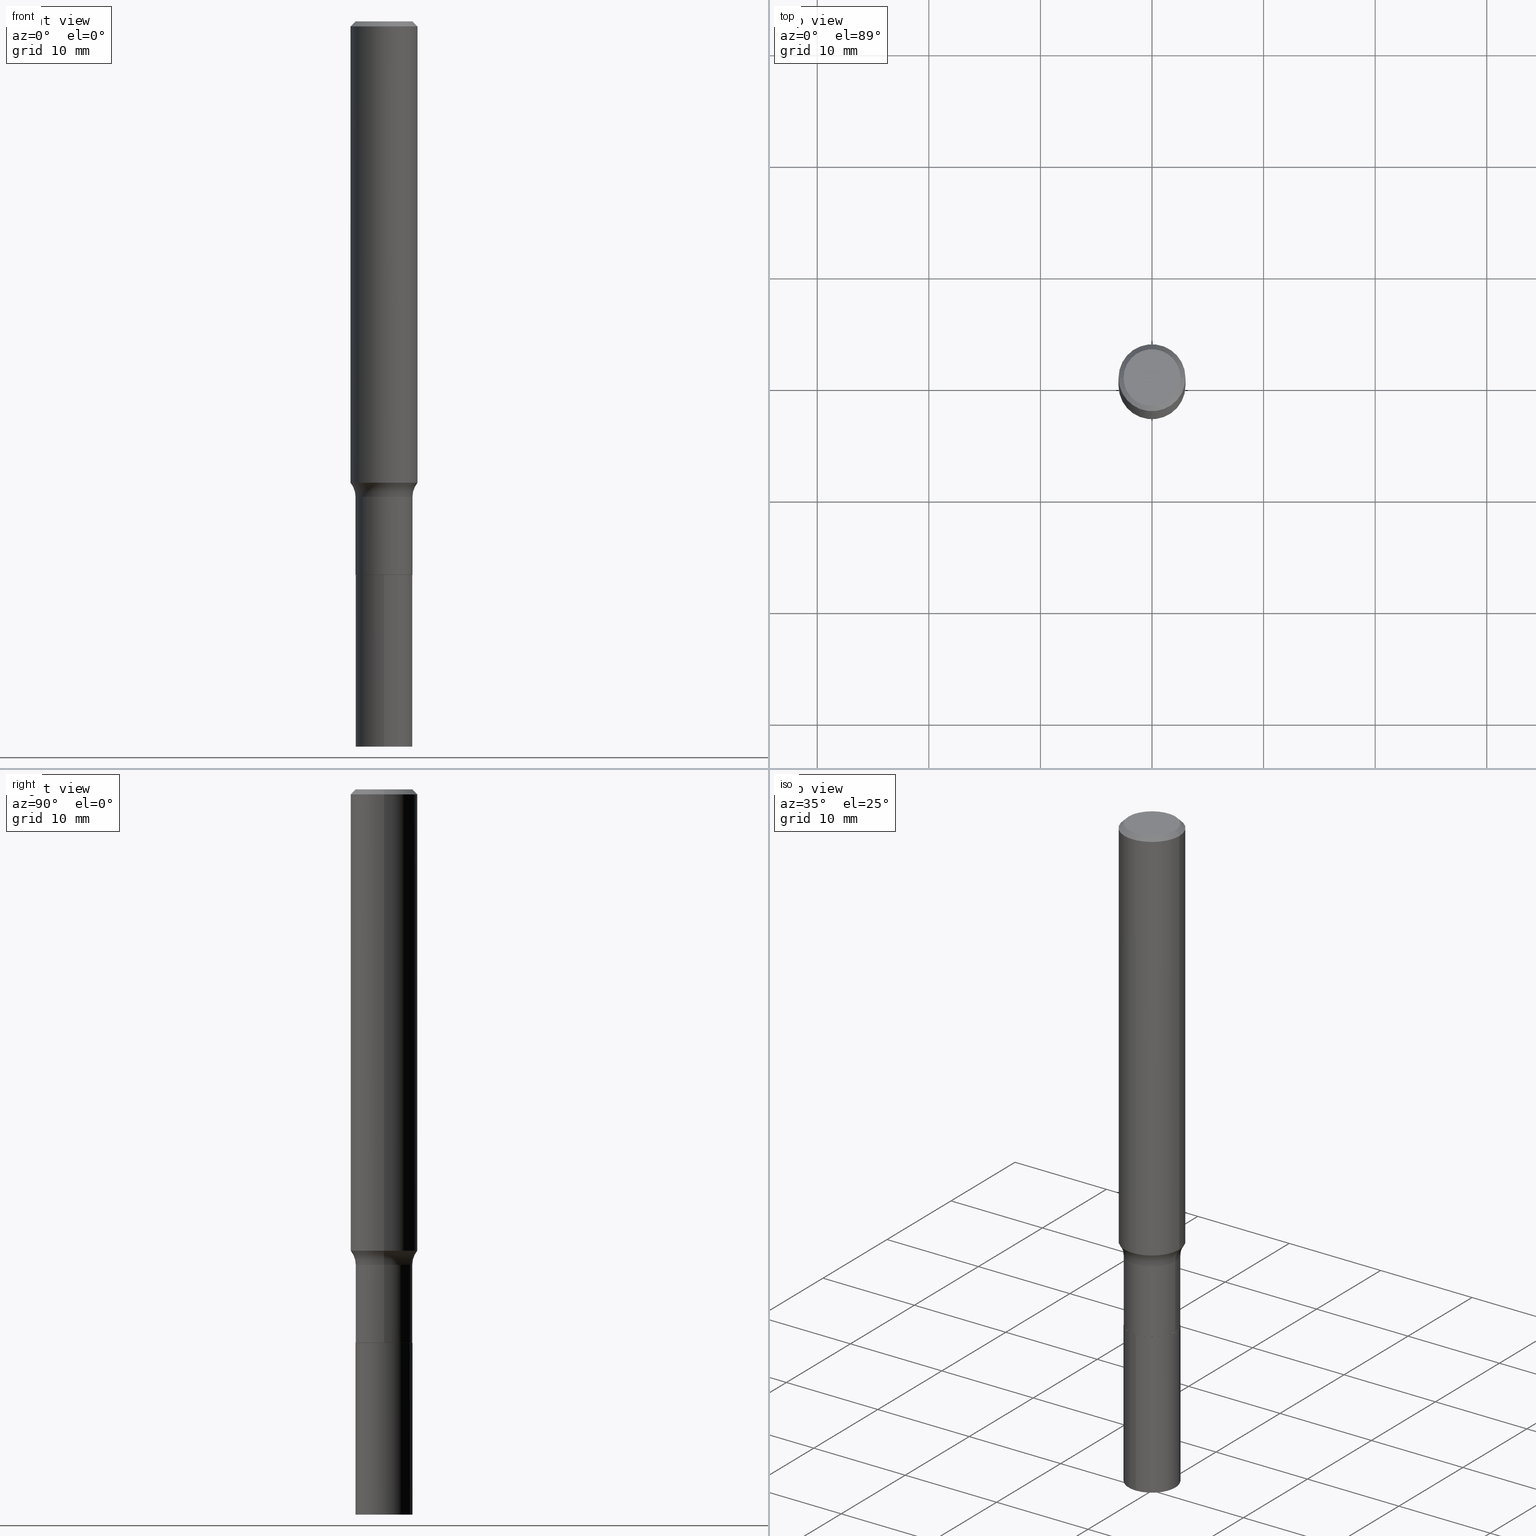
[diagram: canonical four-view strip — front | top / right | iso, engineering-drawing reading convention]
A machine part, canonical four-view strip (front | top / right | iso — engineering-drawing reading convention). The complete STEP part file that produces these views, byte-faithful:
ISO-10303-21;
HEADER;
FILE_DESCRIPTION (( 'STEP AP203' ),
    '1' );
FILE_NAME ('67726.STEP',
    '2024-04-19T16:12:01',
    ( '' ),
    ( '' ),
    'SwSTEP 2.0',
    'SolidWorks 2023',
    '' );
FILE_SCHEMA (( 'CONFIG_CONTROL_DESIGN' ));
ENDSEC;

DATA;
#1 = DIRECTION ( 'NONE',  ( -0.7071067811865454633, 2.468850131082235761E-15, -0.7071067811865493491 ) ) ;
#2 = AXIS2_PLACEMENT_3D ( 'NONE', #388, #211, #313 ) ;
#3 = AXIS2_PLACEMENT_3D ( 'NONE', #16, #63, #162 ) ;
#4 = DIRECTION ( 'NONE',  ( -2.445468806185136597E-29, 3.491481338843145583E-15, 1.000000000000000000 ) ) ;
#5 = PRODUCT_DEFINITION_SHAPE ( 'NONE', 'NONE',  #344 ) ;
#6 = EDGE_LOOP ( 'NONE', ( #37, #410, #8, #219 ) ) ;
#7 = EDGE_CURVE ( 'NONE', #361, #291, #416, .T. ) ;
#8 = ORIENTED_EDGE ( 'NONE', *, *, #430, .F. ) ;
#9 = AXIS2_PLACEMENT_3D ( 'NONE', #386, #106, #465 ) ;
#10 = SECURITY_CLASSIFICATION ( '', '', #108 ) ;
#11 = DIRECTION ( 'NONE',  ( 0.7071067811865454633, -7.319954787623246579E-15, -0.7071067811865493491 ) ) ;
#12 = ORIENTED_EDGE ( 'NONE', *, *, #380, .T. ) ;
#13 = DIRECTION ( 'NONE',  ( -2.445468806185136877E-29, 3.491481338843145188E-15, 1.000000000000000000 ) ) ;
#14 = APPROVAL ( #302, 'UNSPECIFIED' ) ;
#15 = ORIENTED_EDGE ( 'NONE', *, *, #168, .T. ) ;
#16 = CARTESIAN_POINT ( 'NONE',  ( -0.1803999999999999770, -4.576886591267577921E-15, -1.677999999999999936 ) ) ;
#17 = CIRCLE ( 'NONE', #244, 0.1003850000000000159 ) ;
#18 = CARTESIAN_POINT ( 'NONE',  ( 6.258336242776719159E-29, -8.934853672551297411E-15, -2.559100000000000374 ) ) ;
#19 = CARTESIAN_POINT ( 'NONE',  ( -7.010894528396533507E-16, -0.1004000000000068171, -1.953099999999999614 ) ) ;
#20 = ORIENTED_EDGE ( 'NONE', *, *, #121, .F. ) ;
#21 = DATE_TIME_ROLE ( 'creation_date' ) ;
#22 = CYLINDRICAL_SURFACE ( 'NONE', #275, 0.1004000000000000031 ) ;
#23 = DIRECTION ( 'NONE',  ( -6.982962677686266711E-15, -1.000000000000000000, 2.720964137115799877E-15 ) ) ;
#24 = CARTESIAN_POINT ( 'NONE',  ( -0.1003999999999999754, -5.624701167698822388E-15, -1.677999999999999936 ) ) ;
#25 = AXIS2_PLACEMENT_3D ( 'NONE', #458, #456, #209 ) ;
#26 = AXIS2_PLACEMENT_3D ( 'NONE', #238, #446, #448 ) ;
#27 = APPROVAL ( #346, 'UNSPECIFIED' ) ;
#28 = DIRECTION ( 'NONE',  ( 1.000000000000000000, -6.982962677686266711E-15, 4.876176775795935793E-29 ) ) ;
#29 = DIRECTION ( 'NONE',  ( 0.7071067811866078578, -2.468850131082888544E-15, 0.7071067811864871766 ) ) ;
#30 = CARTESIAN_POINT ( 'NONE',  ( 0.000000000000000000, 0.000000000000000000, 0.000000000000000000 ) ) ;
#31 = CALENDAR_DATE ( 2024, 19, 4 ) ;
#32 = EDGE_CURVE ( 'NONE', #79, #83, #374, .T. ) ;
#33 = CIRCLE ( 'NONE', #3, 0.07999999999999996003 ) ;
#34 = DIRECTION ( 'NONE',  ( -2.445468806185136597E-29, 3.491481338843145583E-15, 1.000000000000000000 ) ) ;
#35 = DIRECTION ( 'NONE',  ( 1.000000000000000000, -6.982962677686266711E-15, 4.876176775795935232E-29 ) ) ;
#36 = CARTESIAN_POINT ( 'NONE',  ( 4.776245125360189939E-29, -6.819212202894547031E-15, -1.953100000000000058 ) ) ;
#37 = ORIENTED_EDGE ( 'NONE', *, *, #337, .T. ) ;
#38 = EDGE_LOOP ( 'NONE', ( #133, #12, #271, #91 ) ) ;
#39 = CIRCLE ( 'NONE', #258, 0.1004000000000000031 ) ;
#40 = VERTEX_POINT ( 'NONE', #224 ) ;
#41 = DIRECTION ( 'NONE',  ( -2.445468806185136877E-29, 3.491481338843145188E-15, 1.000000000000000000 ) ) ;
#42 = EDGE_CURVE ( 'NONE', #216, #148, #342, .T. ) ;
#43 = ORIENTED_EDGE ( 'NONE', *, *, #396, .T. ) ;
#44 = EDGE_CURVE ( 'NONE', #445, #124, #39, .T. ) ;
#45 = CLOSED_SHELL ( 'NONE', ( #339, #467, #161, #285, #261, #127, #132, #324, #181, #54, #174, #248 ) ) ;
#46 = CIRCLE ( 'NONE', #177, 0.09990000000000000269 ) ;
#47 = DIRECTION ( 'NONE',  ( -2.445468806185136597E-29, 3.491481338843145583E-15, 1.000000000000000000 ) ) ;
#48 = DIRECTION ( 'NONE',  ( 6.982962677686265922E-15, 1.000000000000000000, -3.491157540687701094E-15 ) ) ;
#49 = COORDINATED_UNIVERSAL_TIME_OFFSET ( 5, 0, .BEHIND. ) ;
#50 = ADVANCED_FACE ( 'NONE', ( #326 ), #154, .F. ) ;
#51 = ORIENTED_EDGE ( 'NONE', *, *, #121, .T. ) ;
#52 = DIMENSIONAL_EXPONENTS ( 1.000000000000000000, 0.000000000000000000, 0.000000000000000000, 0.000000000000000000, 0.000000000000000000, 0.000000000000000000, 0.000000000000000000 ) ;
#53 = APPLICATION_PROTOCOL_DEFINITION ( 'international standard', 'config_control_design', 1994, #411 ) ;
#54 = ADVANCED_FACE ( 'NONE', ( #193 ), #157, .F. ) ;
#55 = ORIENTED_EDGE ( 'NONE', *, *, #396, .F. ) ;
#56 = PERSON_AND_ORGANIZATION ( #398, #101 ) ;
#57 = FACE_OUTER_BOUND ( 'NONE', #6, .T. ) ;
#58 = AXIS2_PLACEMENT_3D ( 'NONE', #66, #306, #102 ) ;
#59 = CC_DESIGN_PERSON_AND_ORGANIZATION_ASSIGNMENT ( #240, #207, ( #455 ) ) ;
#60 = AXIS2_PLACEMENT_3D ( 'NONE', #428, #34, #389 ) ;
#61 = DIRECTION ( 'NONE',  ( -2.445694913228593758E-29, 3.491157540687701094E-15, 1.000000000000000000 ) ) ;
#62 = ADVANCED_FACE ( 'NONE', ( #340 ), #210, .T. ) ;
#63 = DIRECTION ( 'NONE',  ( 7.105427357601001859E-15, 1.000000000000000000, -3.491481338843145583E-15 ) ) ;
#64 = DIRECTION ( 'NONE',  ( 2.438088387897960049E-29, -3.491481338843145188E-15, -1.000000000000000000 ) ) ;
#65 = COORDINATED_UNIVERSAL_TIME_OFFSET ( 5, 0, .BEHIND. ) ;
#66 = CARTESIAN_POINT ( 'NONE',  ( 6.258336242776719159E-29, -8.934853672551297411E-15, -2.559100000000000374 ) ) ;
#67 = COORDINATED_UNIVERSAL_TIME_OFFSET ( 5, 0, .BEHIND. ) ;
#68 = CC_DESIGN_PERSON_AND_ORGANIZATION_ASSIGNMENT ( #180, #145, ( #455 ) ) ;
#69 = DIRECTION ( 'NONE',  ( 1.000000000000000000, -6.982962677686266711E-15, 4.883557194083112901E-29 ) ) ;
#70 = CIRCLE ( 'NONE', #319, 0.1180999999999999966 ) ;
#71 = CARTESIAN_POINT ( 'NONE',  ( 0.1181000000000002048, -6.508167473402816070E-15, -1.627813248760255238 ) ) ;
#72 = PERSON_AND_ORGANIZATION_ROLE ( 'classification_officer' ) ;
#73 = DIRECTION ( 'NONE',  ( 1.000000000000000000, -6.982962677686268288E-15, 0.000000000000000000 ) ) ;
#74 = CARTESIAN_POINT ( 'NONE',  ( 4.776245125360189939E-29, -6.819212202894547031E-15, -1.953100000000000058 ) ) ;
#75 = LOCAL_TIME ( 12, 12, 1.000000000000000000, #49 ) ;
#76 = FACE_OUTER_BOUND ( 'NONE', #117, .T. ) ;
#77 = ORIENTED_EDGE ( 'NONE', *, *, #265, .T. ) ;
#78 = DIRECTION ( 'NONE',  ( -6.982962677686266711E-15, -1.000000000000000000, 2.720964137115799877E-15 ) ) ;
#79 = VERTEX_POINT ( 'NONE', #237 ) ;
#80 = PRODUCT ( '67726', '67726', '', ( #417 ) ) ;
#81 = CC_DESIGN_PERSON_AND_ORGANIZATION_ASSIGNMENT ( #415, #368, ( #80 ) ) ;
#82 = CARTESIAN_POINT ( 'NONE',  ( -0.1003850000000000159, 7.319105043583386689E-16, -2.868857591683090262E-17 ) ) ;
#83 = VERTEX_POINT ( 'NONE', #381 ) ;
#84 = ADVANCED_BREP_SHAPE_REPRESENTATION ( '67726', ( #220, #372, #359 ), #394 ) ;
#85 = CARTESIAN_POINT ( 'NONE',  ( 7.015701749847187307E-46, -1.001656274515824970E-31, -2.868857591682589212E-17 ) ) ;
#86 = EDGE_LOOP ( 'NONE', ( #15, #273, #179, #151 ) ) ;
#87 = LINE ( 'NONE', #188, #333 ) ;
#88 = DIRECTION ( 'NONE',  ( -2.445468806185136877E-29, 3.491481338843145188E-15, 1.000000000000000000 ) ) ;
#89 = ORIENTED_EDGE ( 'NONE', *, *, #418, .T. ) ;
#90 = FACE_OUTER_BOUND ( 'NONE', #294, .T. ) ;
#91 = ORIENTED_EDGE ( 'NONE', *, *, #412, .F. ) ;
#92 = CARTESIAN_POINT ( 'NONE',  ( 7.133849067031883349E-16, 0.1003999999999931891, -1.953100000000000280 ) ) ;
#93 = CARTESIAN_POINT ( 'NONE',  ( 0.000000000000000000, 0.000000000000000000, 0.000000000000000000 ) ) ;
#94 = ORIENTED_EDGE ( 'NONE', *, *, #142, .T. ) ;
#95 = DIRECTION ( 'NONE',  ( 1.000000000000000000, -6.982962677686262766E-15, 0.000000000000000000 ) ) ;
#96 = UNCERTAINTY_MEASURE_WITH_UNIT (LENGTH_MEASURE( 1.000000000000000082E-05 ), #205, 'distance_accuracy_value', 'NONE');
#97 = CARTESIAN_POINT ( 'NONE',  ( -0.09990000000000000269, -6.106730782696096612E-15, -1.953100000000000058 ) ) ;
#98 = ORIENTED_EDGE ( 'NONE', *, *, #247, .F. ) ;
#99 = APPROVAL_STATUS ( 'not_yet_approved' ) ;
#100 = ORIENTED_EDGE ( 'NONE', *, *, #196, .T. ) ;
#101 = ORGANIZATION ( 'UNSPECIFIED', 'UNSPECIFIED', '' ) ;
#102 = DIRECTION ( 'NONE',  ( -6.982962677686266711E-15, -1.000000000000000000, 5.441928274231599754E-15 ) ) ;
#103 = CARTESIAN_POINT ( 'NONE',  ( 4.776245125360189939E-29, -6.819212202894547031E-15, -1.953100000000000058 ) ) ;
#104 = APPLICATION_PROTOCOL_DEFINITION ( 'international standard', 'config_control_design', 1994, #457 ) ;
#105 = EDGE_CURVE ( 'NONE', #361, #331, #163, .T. ) ;
#106 = DIRECTION ( 'NONE',  ( -2.445468806185136597E-29, 3.491481338843145583E-15, 1.000000000000000000 ) ) ;
#107 = CC_DESIGN_DATE_AND_TIME_ASSIGNMENT ( #376, #21, ( #344 ) ) ;
#108 = SECURITY_CLASSIFICATION_LEVEL ( 'unclassified' ) ;
#109 = AXIS2_PLACEMENT_3D ( 'NONE', #36, #390, #354 ) ;
#110 = EDGE_CURVE ( 'NONE', #331, #187, #171, .T. ) ;
#111 = DIRECTION ( 'NONE',  ( -1.000000000000000000, 6.982962677686266711E-15, 0.000000000000000000 ) ) ;
#112 = LINE ( 'NONE', #134, #435 ) ;
#113 = CALENDAR_DATE ( 2024, 19, 4 ) ;
#114 = VERTEX_POINT ( 'NONE', #24 ) ;
#115 = CIRCLE ( 'NONE', #200, 0.1003999999999999754 ) ;
#116 = EDGE_CURVE ( 'NONE', #148, #216, #214, .T. ) ;
#117 = EDGE_LOOP ( 'NONE', ( #371, #289 ) ) ;
#118 = ORIENTED_EDGE ( 'NONE', *, *, #265, .F. ) ;
#119 = AXIS2_PLACEMENT_3D ( 'NONE', #175, #140, #111 ) ;
#120 = CIRCLE ( 'NONE', #343, 0.1004000000000000031 ) ;
#121 = EDGE_CURVE ( 'NONE', #291, #187, #190, .T. ) ;
#122 = ORIENTED_EDGE ( 'NONE', *, *, #7, .F. ) ;
#123 = DIRECTION ( 'NONE',  ( -2.445468806185136597E-29, 3.491481338843145583E-15, 1.000000000000000000 ) ) ;
#124 = VERTEX_POINT ( 'NONE', #279 ) ;
#125 = ORIENTED_EDGE ( 'NONE', *, *, #196, .F. ) ;
#126 =( NAMED_UNIT ( * ) SI_UNIT ( $, .STERADIAN. ) SOLID_ANGLE_UNIT ( ) );
#127 = ADVANCED_FACE ( 'NONE', ( #281 ), #277, .T. ) ;
#128 = AXIS2_PLACEMENT_3D ( 'NONE', #93, #47, #228 ) ;
#129 = ORIENTED_EDGE ( 'NONE', *, *, #105, .T. ) ;
#130 = CARTESIAN_POINT ( 'NONE',  ( 4.776245125360189939E-29, -6.819212202894547031E-15, -1.953100000000000058 ) ) ;
#131 = CARTESIAN_POINT ( 'NONE',  ( 0.1180999999999999966, -8.720764054544245267E-16, -0.01771500000000011260 ) ) ;
#132 = ADVANCED_FACE ( 'NONE', ( #452 ), #243, .F. ) ;
#133 = ORIENTED_EDGE ( 'NONE', *, *, #430, .T. ) ;
#134 = CARTESIAN_POINT ( 'NONE',  ( 0.1181000000000001077, -8.246878922347488542E-16, 5.758764772215005345E-30 ) ) ;
#135 = AXIS2_PLACEMENT_3D ( 'NONE', #338, #173, #310 ) ;
#136 = CARTESIAN_POINT ( 'NONE',  ( 0.000000000000000000, 0.000000000000000000, 0.000000000000000000 ) ) ;
#137 = DIRECTION ( 'NONE',  ( 1.000000000000000000, -6.982962677686263555E-15, 0.000000000000000000 ) ) ;
#138 = FACE_OUTER_BOUND ( 'NONE', #255, .T. ) ;
#139 = COORDINATED_UNIVERSAL_TIME_OFFSET ( 5, 0, .BEHIND. ) ;
#140 = DIRECTION ( 'NONE',  ( 2.445468806185136597E-29, -3.491481338843145583E-15, -1.000000000000000000 ) ) ;
#141 = VECTOR ( 'NONE', #1, 39.37007874015748854 ) ;
#142 = EDGE_CURVE ( 'NONE', #40, #114, #408, .T. ) ;
#143 = CARTESIAN_POINT ( 'NONE',  ( 4.332147990156996744E-31, -6.185159191760671627E-17, -0.01771500000000011260 ) ) ;
#144 = CARTESIAN_POINT ( 'NONE',  ( -7.010894528396385595E-16, -0.1004000000000089404, -2.559099999999999930 ) ) ;
#145 = PERSON_AND_ORGANIZATION_ROLE ( 'creator' ) ;
#146 = ORIENTED_EDGE ( 'NONE', *, *, #44, .F. ) ;
#147 = CARTESIAN_POINT ( 'NONE',  ( 4.103496656778659263E-29, -5.858705686578797902E-15, -1.677999999999999936 ) ) ;
#148 = VERTEX_POINT ( 'NONE', #284 ) ;
#149 = CARTESIAN_POINT ( 'NONE',  ( -3.466580908311444062E-29, -2.286148854081958558E-14, -2.559100000000000374 ) ) ;
#150 = DIRECTION ( 'NONE',  ( -2.445468806185136597E-29, 3.491481338843145583E-15, 1.000000000000000000 ) ) ;
#151 = ORIENTED_EDGE ( 'NONE', *, *, #432, .F. ) ;
#152 = DIRECTION ( 'NONE',  ( -2.445694913228594039E-29, 3.491157540687701094E-15, 1.000000000000000000 ) ) ;
#153 = LOCAL_TIME ( 12, 12, 1.000000000000000000, #67 ) ;
#154 = PLANE ( 'NONE',  #304 ) ;
#155 = DIRECTION ( 'NONE',  ( -2.445468806185136877E-29, 3.491481338843145188E-15, 1.000000000000000000 ) ) ;
#156 = DIRECTION ( 'NONE',  ( -2.445468806185136597E-29, 3.491481338843145583E-15, 1.000000000000000000 ) ) ;
#157 = PLANE ( 'NONE',  #357 ) ;
#158 = CARTESIAN_POINT ( 'NONE',  ( -0.1180999999999999966, -2.033514615610156045E-15, -0.01771500000000011260 ) ) ;
#159 = LINE ( 'NONE', #370, #236 ) ;
#160 = VERTEX_POINT ( 'NONE', #241 ) ;
#161 = ADVANCED_FACE ( 'NONE', ( #425 ), #206, .T. ) ;
#162 = DIRECTION ( 'NONE',  ( -1.000000000000000000, 7.105427357601001859E-15, 0.000000000000000000 ) ) ;
#163 = CIRCLE ( 'NONE', #351, 0.09990000000000000269 ) ;
#164 = VERTEX_POINT ( 'NONE', #71 ) ;
#165 = PERSON_AND_ORGANIZATION_ROLE ( 'creator' ) ;
#166 = EDGE_LOOP ( 'NONE', ( #433, #367 ) ) ;
#167 = PERSON_AND_ORGANIZATION ( #398, #101 ) ;
#168 = EDGE_CURVE ( 'NONE', #164, #160, #208, .T. ) ;
#169 = CARTESIAN_POINT ( 'NONE',  ( 0.09990000000000000269, -7.516810174395405889E-15, -1.953100000000000058 ) ) ;
#170 = AXIS2_PLACEMENT_3D ( 'NONE', #143, #123, #263 ) ;
#171 = LINE ( 'NONE', #169, #400 ) ;
#172 = CARTESIAN_POINT ( 'NONE',  ( 3.980766522138090197E-29, -5.683479581168066230E-15, -1.627813248760255238 ) ) ;
#173 = DIRECTION ( 'NONE',  ( -2.438088387897960049E-29, 3.491481338843145188E-15, 1.000000000000000000 ) ) ;
#174 = ADVANCED_FACE ( 'NONE', ( #427 ), #308, .F. ) ;
#175 = CARTESIAN_POINT ( 'NONE',  ( 4.332147990156996744E-31, -6.185159191760671627E-17, -0.01771500000000011260 ) ) ;
#176 = AXIS2_PLACEMENT_3D ( 'NONE', #149, #358, #322 ) ;
#177 = AXIS2_PLACEMENT_3D ( 'NONE', #330, #192, #269 ) ;
#178 = CARTESIAN_POINT ( 'NONE',  ( -0.1003999999999999893, -5.624701167698822388E-15, -1.952600000000000113 ) ) ;
#179 = ORIENTED_EDGE ( 'NONE', *, *, #419, .F. ) ;
#180 = PERSON_AND_ORGANIZATION ( #398, #101 ) ;
#181 = ADVANCED_FACE ( 'NONE', ( #138 ), #218, .T. ) ;
#182 = EDGE_LOOP ( 'NONE', ( #399, #328 ) ) ;
#183 = CC_DESIGN_PERSON_AND_ORGANIZATION_ASSIGNMENT ( #56, #165, ( #344 ) ) ;
#184 = DIRECTION ( 'NONE',  ( 1.000000000000000000, -6.982962677686266711E-15, 4.875668750515085695E-29 ) ) ;
#185 = ORIENTED_EDGE ( 'NONE', *, *, #460, .F. ) ;
#186 = CC_DESIGN_APPROVAL ( #350, ( #344 ) ) ;
#187 = VERTEX_POINT ( 'NONE', #246 ) ;
#188 = CARTESIAN_POINT ( 'NONE',  ( 0.1003999999999999754, -7.010894528397009782E-16, 4.895681482899117754E-30 ) ) ;
#189 = DIRECTION ( 'NONE',  ( -0.7071067811866078578, 7.493145998870571886E-15, 0.7071067811864871766 ) ) ;
#190 = CIRCLE ( 'NONE', #325, 0.1003999999999999893 ) ;
#191 = APPROVAL_PERSON_ORGANIZATION ( #459, #27, #249 ) ;
#192 = DIRECTION ( 'NONE',  ( -2.445468806185136597E-29, 3.491481338843145583E-15, 1.000000000000000000 ) ) ;
#193 = FACE_OUTER_BOUND ( 'NONE', #447, .T. ) ;
#194 = CARTESIAN_POINT ( 'NONE',  ( 0.1803999999999999770, -7.118432153633400631E-15, -1.677999999999999936 ) ) ;
#195 = CC_DESIGN_DATE_AND_TIME_ASSIGNMENT ( #309, #307, ( #10 ) ) ;
#196 = EDGE_CURVE ( 'NONE', #160, #164, #375, .T. ) ;
#197 = ORIENTED_EDGE ( 'NONE', *, *, #449, .T. ) ;
#198 = EDGE_LOOP ( 'NONE', ( #98, #403, #440, #118 ) ) ;
#199 =( NAMED_UNIT ( * ) PLANE_ANGLE_UNIT ( ) SI_UNIT ( $, .RADIAN. ) );
#200 = AXIS2_PLACEMENT_3D ( 'NONE', #441, #250, #363 ) ;
#201 = CARTESIAN_POINT ( 'NONE',  ( 4.332147990156996744E-31, -6.185159191760671627E-17, -0.01771500000000011260 ) ) ;
#202 = CARTESIAN_POINT ( 'NONE',  ( 4.776245125360189939E-29, -6.819212202894547031E-15, -1.953100000000000058 ) ) ;
#203 =( LENGTH_UNIT ( ) NAMED_UNIT ( * ) SI_UNIT ( $, .METRE. ) );
#204 = DIRECTION ( 'NONE',  ( -2.445468806185136597E-29, 3.491481338843145583E-15, 1.000000000000000000 ) ) ;
#205 =( CONVERSION_BASED_UNIT ( 'INCH', #329 ) LENGTH_UNIT ( ) NAMED_UNIT ( #52 ) );
#206 = CYLINDRICAL_SURFACE ( 'NONE', #434, 0.1181000000000001077 ) ;
#207 = PERSON_AND_ORGANIZATION_ROLE ( 'design_supplier' ) ;
#208 = CIRCLE ( 'NONE', #297, 0.1181000000000002048 ) ;
#209 = DIRECTION ( 'NONE',  ( -6.982962677686266711E-15, -1.000000000000000000, 2.720964137115799877E-15 ) ) ;
#210 = CYLINDRICAL_SURFACE ( 'NONE', #25, 0.1004000000000000031 ) ;
#211 = DIRECTION ( 'NONE',  ( -2.445468806185136597E-29, 3.491481338843145583E-15, 1.000000000000000000 ) ) ;
#212 = SHAPE_DEFINITION_REPRESENTATION ( #5, #84 ) ;
#213 = FACE_OUTER_BOUND ( 'NONE', #38, .T. ) ;
#214 = CIRCLE ( 'NONE', #58, 0.1004000000000000031 ) ;
#215 = LOCAL_TIME ( 12, 12, 1.000000000000000000, #235 ) ;
#216 = VERTEX_POINT ( 'NONE', #144 ) ;
#217 = ORIENTED_EDGE ( 'NONE', *, *, #387, .F. ) ;
#218 = CONICAL_SURFACE ( 'NONE', #119, 0.1180999999999999966, 0.7853981633974456145 ) ;
#219 = ORIENTED_EDGE ( 'NONE', *, *, #110, .F. ) ;
#220 = MANIFOLD_SOLID_BREP ( 'Body-Move/Copy2[1]', #462 ) ;
#221 = TOROIDAL_SURFACE ( 'NONE', #283, 0.1803999999999999770, 0.07999999999999996003 ) ;
#222 = ADVANCED_FACE ( 'NONE', ( #286 ), #22, .T. ) ;
#223 = ORIENTED_EDGE ( 'NONE', *, *, #436, .T. ) ;
#224 = CARTESIAN_POINT ( 'NONE',  ( 0.1003999999999999754, -6.559795139418498979E-15, -1.677999999999999936 ) ) ;
#225 = CYLINDRICAL_SURFACE ( 'NONE', #128, 0.1181000000000001077 ) ;
#226 = ORIENTED_EDGE ( 'NONE', *, *, #387, .T. ) ;
#227 = CC_DESIGN_APPROVAL ( #14, ( #455 ) ) ;
#228 = DIRECTION ( 'NONE',  ( 1.000000000000000000, -6.982962677686266711E-15, 4.876176775795935793E-29 ) ) ;
#229 = ORIENTED_EDGE ( 'NONE', *, *, #42, .T. ) ;
#230 = DIRECTION ( 'NONE',  ( 1.000000000000000000, 0.000000000000000000, 0.000000000000000000 ) ) ;
#231 = ORIENTED_EDGE ( 'NONE', *, *, #110, .T. ) ;
#232 = CALENDAR_DATE ( 2024, 19, 4 ) ;
#233 = ADVANCED_FACE ( 'NONE', ( #76 ), #356, .F. ) ;
#234 = CARTESIAN_POINT ( 'NONE',  ( -0.09990000000000000269, -6.109380009870207025E-15, -1.953100000000000058 ) ) ;
#235 = COORDINATED_UNIVERSAL_TIME_OFFSET ( 5, 0, .BEHIND. ) ;
#236 = VECTOR ( 'NONE', #88, 39.37007874015748143 ) ;
#237 = CARTESIAN_POINT ( 'NONE',  ( 0.1003850000000000159, -7.803837484803599345E-16, -2.868857591682071522E-17 ) ) ;
#238 = CARTESIAN_POINT ( 'NONE',  ( 4.332147990156996744E-31, -6.185159191760671627E-17, -0.01771500000000011260 ) ) ;
#239 = DIRECTION ( 'NONE',  ( -2.445468806185136597E-29, 3.491481338843145583E-15, 1.000000000000000000 ) ) ;
#240 = PERSON_AND_ORGANIZATION ( #398, #101 ) ;
#241 = CARTESIAN_POINT ( 'NONE',  ( -0.1181000000000002048, -4.844328610235386455E-15, -1.627813248760255238 ) ) ;
#242 = PERSON_AND_ORGANIZATION ( #398, #101 ) ;
#243 = TOROIDAL_SURFACE ( 'NONE', #453, 0.1803999999999999770, 0.07999999999999996003 ) ;
#244 = AXIS2_PLACEMENT_3D ( 'NONE', #290, #401, #360 ) ;
#245 = DIRECTION ( 'NONE',  ( -1.000000000000000000, 6.982962677686265922E-15, -4.876176775795935793E-29 ) ) ;
#246 = CARTESIAN_POINT ( 'NONE',  ( 0.1003999999999999893, -7.518555915064826604E-15, -1.952600000000000113 ) ) ;
#247 = EDGE_CURVE ( 'NONE', #79, #301, #392, .T. ) ;
#248 = ADVANCED_FACE ( 'NONE', ( #431 ), #252, .T. ) ;
#249 = APPROVAL_ROLE ( '' ) ;
#250 = DIRECTION ( 'NONE',  ( -2.445468806185136597E-29, 3.491481338843145583E-15, 1.000000000000000000 ) ) ;
#251 = CARTESIAN_POINT ( 'NONE',  ( 0.000000000000000000, 0.000000000000000000, 0.000000000000000000 ) ) ;
#252 = CONICAL_SURFACE ( 'NONE', #109, 0.09990000000000000269, 0.7853981633975336552 ) ;
#253 = ORIENTED_EDGE ( 'NONE', *, *, #432, .T. ) ;
#254 = DIRECTION ( 'NONE',  ( 1.000000000000000000, -6.982962677686266711E-15, 4.883557194083112901E-29 ) ) ;
#255 = EDGE_LOOP ( 'NONE', ( #468, #315, #77, #450 ) ) ;
#256 = EDGE_CURVE ( 'NONE', #301, #79, #17, .T. ) ;
#257 = DIRECTION ( 'NONE',  ( -2.445694913228593758E-29, 3.491157540687701094E-15, 1.000000000000000000 ) ) ;
#258 = AXIS2_PLACEMENT_3D ( 'NONE', #202, #335, #362 ) ;
#259 = AXIS2_PLACEMENT_3D ( 'NONE', #251, #314, #35 ) ;
#260 = CARTESIAN_POINT ( 'NONE',  ( -0.1003999999999999754, 7.133849067031404116E-16, -4.938610830615923592E-30 ) ) ;
#261 = ADVANCED_FACE ( 'NONE', ( #213 ), #316, .T. ) ;
#262 = EDGE_LOOP ( 'NONE', ( #122, #129, #231, #20 ) ) ;
#263 = DIRECTION ( 'NONE',  ( 1.000000000000000000, -6.982962677686266711E-15, 0.000000000000000000 ) ) ;
#264 = ORIENTED_EDGE ( 'NONE', *, *, #436, .F. ) ;
#265 = EDGE_CURVE ( 'NONE', #301, #443, #395, .T. ) ;
#266 = DIRECTION ( 'NONE',  ( 2.445694913228593478E-29, -3.491157540687701094E-15, -1.000000000000000000 ) ) ;
#267 = DIRECTION ( 'NONE',  ( -6.982962677686266711E-15, -1.000000000000000000, 3.491481338843145583E-15 ) ) ;
#268 = AXIS2_PLACEMENT_3D ( 'NONE', #85, #150, #184 ) ;
#269 = DIRECTION ( 'NONE',  ( 1.000000000000000000, -6.982962677686267499E-15, 0.000000000000000000 ) ) ;
#270 = ORIENTED_EDGE ( 'NONE', *, *, #380, .F. ) ;
#271 = ORIENTED_EDGE ( 'NONE', *, *, #142, .F. ) ;
#272 = PRODUCT_RELATED_PRODUCT_CATEGORY ( 'detail', '', ( #80 ) ) ;
#273 = ORIENTED_EDGE ( 'NONE', *, *, #369, .T. ) ;
#274 = FACE_OUTER_BOUND ( 'NONE', #198, .T. ) ;
#275 = AXIS2_PLACEMENT_3D ( 'NONE', #74, #257, #78 ) ;
#276 = CONICAL_SURFACE ( 'NONE', #26, 0.1180999999999999966, 0.7853981633974456145 ) ;
#277 = CYLINDRICAL_SURFACE ( 'NONE', #311, 0.1003999999999999754 ) ;
#278 = CARTESIAN_POINT ( 'NONE',  ( 0.000000000000000000, 0.000000000000000000, 0.000000000000000000 ) ) ;
#279 = CARTESIAN_POINT ( 'NONE',  ( 7.133849067032031261E-16, 0.1003999999999931753, -1.953100000000000280 ) ) ;
#280 = CC_DESIGN_PERSON_AND_ORGANIZATION_ASSIGNMENT ( #242, #72, ( #10 ) ) ;
#281 = FACE_OUTER_BOUND ( 'NONE', #404, .T. ) ;
#282 = DATE_AND_TIME ( #31, #288 ) ;
#283 = AXIS2_PLACEMENT_3D ( 'NONE', #147, #4, #254 ) ;
#284 = CARTESIAN_POINT ( 'NONE',  ( 7.133849067031957305E-16, 0.1003999999999910797, -2.559100000000001263 ) ) ;
#285 = ADVANCED_FACE ( 'NONE', ( #353 ), #221, .F. ) ;
#286 = FACE_OUTER_BOUND ( 'NONE', #397, .T. ) ;
#287 = ORIENTED_EDGE ( 'NONE', *, *, #418, .F. ) ;
#288 = LOCAL_TIME ( 12, 12, 1.000000000000000000, #139 ) ;
#289 = ORIENTED_EDGE ( 'NONE', *, *, #116, .F. ) ;
#290 = CARTESIAN_POINT ( 'NONE',  ( 7.015701749847187307E-46, -1.001656274515824970E-31, -2.868857591682589212E-17 ) ) ;
#291 = VERTEX_POINT ( 'NONE', #178 ) ;
#292 = CARTESIAN_POINT ( 'NONE',  ( 4.776245125360189939E-29, -6.819212202894547031E-15, -1.953100000000000058 ) ) ;
#293 = LINE ( 'NONE', #92, #364 ) ;
#294 = EDGE_LOOP ( 'NONE', ( #406, #100, #253, #300 ) ) ;
#295 = CARTESIAN_POINT ( 'NONE',  ( 4.776245125360189939E-29, -6.819212202894547031E-15, -1.953100000000000058 ) ) ;
#296 = EDGE_LOOP ( 'NONE', ( #125, #223, #226, #442 ) ) ;
#297 = AXIS2_PLACEMENT_3D ( 'NONE', #172, #204, #73 ) ;
#298 = DIRECTION ( 'NONE',  ( -2.445694913228593758E-29, 3.491157540687701094E-15, 1.000000000000000000 ) ) ;
#299 = VECTOR ( 'NONE', #41, 39.37007874015748143 ) ;
#300 = ORIENTED_EDGE ( 'NONE', *, *, #320, .F. ) ;
#301 = VERTEX_POINT ( 'NONE', #82 ) ;
#302 = APPROVAL_STATUS ( 'not_yet_approved' ) ;
#303 = DIRECTION ( 'NONE',  ( -2.445468806185136597E-29, 3.491481338843145583E-15, 1.000000000000000000 ) ) ;
#304 = AXIS2_PLACEMENT_3D ( 'NONE', #292, #266, #48 ) ;
#305 = CONICAL_SURFACE ( 'NONE', #439, 0.09990000000000000269, 0.7853981633975336552 ) ;
#306 = DIRECTION ( 'NONE',  ( -2.445694913228593758E-29, 3.491157540687701094E-15, 1.000000000000000000 ) ) ;
#307 = DATE_TIME_ROLE ( 'classification_date' ) ;
#308 = PLANE ( 'NONE',  #135 ) ;
#309 = DATE_AND_TIME ( #466, #153 ) ;
#310 = DIRECTION ( 'NONE',  ( 1.000000000000000000, -6.982962677686265922E-15, 4.876176775795935793E-29 ) ) ;
#311 = AXIS2_PLACEMENT_3D ( 'NONE', #30, #239, #345 ) ;
#312 = AXIS2_PLACEMENT_3D ( 'NONE', #194, #267, #95 ) ;
#313 = DIRECTION ( 'NONE',  ( 1.000000000000000000, -6.982962677686268288E-15, 0.000000000000000000 ) ) ;
#314 = DIRECTION ( 'NONE',  ( -2.445468806185136597E-29, 3.491481338843145583E-15, 1.000000000000000000 ) ) ;
#315 = ORIENTED_EDGE ( 'NONE', *, *, #256, .F. ) ;
#316 = CYLINDRICAL_SURFACE ( 'NONE', #259, 0.1003999999999999754 ) ;
#317 = ORIENTED_EDGE ( 'NONE', *, *, #247, .T. ) ;
#318 = CARTESIAN_POINT ( 'NONE',  ( -0.1180999999999999966, 7.628363003171413738E-16, -0.01771500000000011260 ) ) ;
#319 = AXIS2_PLACEMENT_3D ( 'NONE', #201, #405, #407 ) ;
#320 = EDGE_CURVE ( 'NONE', #443, #83, #70, .T. ) ;
#321 = ORIENTED_EDGE ( 'NONE', *, *, #168, .F. ) ;
#322 = DIRECTION ( 'NONE',  ( -6.982962677686265922E-15, -1.000000000000000000, 3.491157540687701094E-15 ) ) ;
#323 = ORIENTED_EDGE ( 'NONE', *, *, #116, .T. ) ;
#324 = ADVANCED_FACE ( 'NONE', ( #90 ), #225, .T. ) ;
#325 = AXIS2_PLACEMENT_3D ( 'NONE', #461, #303, #137 ) ;
#326 = FACE_OUTER_BOUND ( 'NONE', #166, .T. ) ;
#327 = ORIENTED_EDGE ( 'NONE', *, *, #256, .T. ) ;
#328 = ORIENTED_EDGE ( 'NONE', *, *, #105, .F. ) ;
#329 = LENGTH_MEASURE_WITH_UNIT ( LENGTH_MEASURE( 0.02539999999999999897 ), #203 );
#330 = CARTESIAN_POINT ( 'NONE',  ( 4.776245125360189939E-29, -6.819212202894547031E-15, -1.953100000000000058 ) ) ;
#331 = VERTEX_POINT ( 'NONE', #438 ) ;
#332 = PERSON_AND_ORGANIZATION ( #398, #101 ) ;
#333 = VECTOR ( 'NONE', #155, 39.37007874015748143 ) ;
#334 = LINE ( 'NONE', #260, #299 ) ;
#335 = DIRECTION ( 'NONE',  ( -2.445694913228593758E-29, 3.491157540687701094E-15, 1.000000000000000000 ) ) ;
#336 = APPROVAL_DATE_TIME ( #373, #350 ) ;
#337 = EDGE_CURVE ( 'NONE', #331, #361, #46, .T. ) ;
#338 = CARTESIAN_POINT ( 'NONE',  ( 4.776245125360189939E-29, -6.819212202894547031E-15, -1.953100000000000058 ) ) ;
#339 = ADVANCED_FACE ( 'NONE', ( #57 ), #305, .T. ) ;
#340 = FACE_OUTER_BOUND ( 'NONE', #420, .T. ) ;
#341 = DATE_AND_TIME ( #113, #352 ) ;
#342 = CIRCLE ( 'NONE', #437, 0.1004000000000000031 ) ;
#343 = AXIS2_PLACEMENT_3D ( 'NONE', #295, #298, #23 ) ;
#344 = PRODUCT_DEFINITION ( 'UNKNOWN', '', #455, #391 ) ;
#345 = DIRECTION ( 'NONE',  ( 1.000000000000000000, -6.982962677686266711E-15, 4.876176775795935232E-29 ) ) ;
#346 = APPROVAL_STATUS ( 'not_yet_approved' ) ;
#347 = CARTESIAN_POINT ( 'NONE',  ( 4.103496656778659263E-29, -5.858705686578797902E-15, -1.677999999999999936 ) ) ;
#348 = APPROVAL_DATE_TIME ( #341, #14 ) ;
#349 = DIRECTION ( 'NONE',  ( -2.445468806185136597E-29, 3.491481338843145583E-15, 1.000000000000000000 ) ) ;
#350 = APPROVAL ( #99, 'UNSPECIFIED' ) ;
#351 = AXIS2_PLACEMENT_3D ( 'NONE', #103, #349, #378 ) ;
#352 = LOCAL_TIME ( 12, 12, 1.000000000000000000, #65 ) ;
#353 = FACE_OUTER_BOUND ( 'NONE', #296, .T. ) ;
#354 = DIRECTION ( 'NONE',  ( 1.000000000000000000, -6.982962677686267499E-15, 0.000000000000000000 ) ) ;
#355 = ORIENTED_EDGE ( 'NONE', *, *, #412, .T. ) ;
#356 = PLANE ( 'NONE',  #176 ) ;
#357 = AXIS2_PLACEMENT_3D ( 'NONE', #424, #64, #245 ) ;
#358 = DIRECTION ( 'NONE',  ( -2.445694913228593478E-29, 3.491157540687701094E-15, 1.000000000000000000 ) ) ;
#359 = AXIS2_PLACEMENT_3D ( 'NONE', #278, #423, #230 ) ;
#360 = DIRECTION ( 'NONE',  ( 1.000000000000000000, -6.982962677686266711E-15, 4.875668750515085695E-29 ) ) ;
#361 = VERTEX_POINT ( 'NONE', #97 ) ;
#362 = DIRECTION ( 'NONE',  ( -6.982962677686266711E-15, -1.000000000000000000, 2.720964137115799877E-15 ) ) ;
#363 = DIRECTION ( 'NONE',  ( 1.000000000000000000, -6.982962677686264344E-15, 0.000000000000000000 ) ) ;
#364 = VECTOR ( 'NONE', #464, 39.37007874015748143 ) ;
#365 = DIRECTION ( 'NONE',  ( -6.982962677686266711E-15, -1.000000000000000000, 5.441928274231599754E-15 ) ) ;
#366 = APPROVAL_ROLE ( '' ) ;
#367 = ORIENTED_EDGE ( 'NONE', *, *, #460, .T. ) ;
#368 = PERSON_AND_ORGANIZATION_ROLE ( 'design_owner' ) ;
#369 = EDGE_CURVE ( 'NONE', #160, #443, #159, .T. ) ;
#370 = CARTESIAN_POINT ( 'NONE',  ( -0.1181000000000001077, 8.391509709326790846E-16, -5.809262341591049389E-30 ) ) ;
#371 = ORIENTED_EDGE ( 'NONE', *, *, #42, .F. ) ;
#372 = MANIFOLD_SOLID_BREP ( 'Body-Move/Copy2[2]', #45 ) ;
#373 = DATE_AND_TIME ( #232, #75 ) ;
#374 = LINE ( 'NONE', #131, #426 ) ;
#375 = CIRCLE ( 'NONE', #2, 0.1181000000000002048 ) ;
#376 = DATE_AND_TIME ( #379, #215 ) ;
#377 = APPROVAL_PERSON_ORGANIZATION ( #167, #14, #451 ) ;
#378 = DIRECTION ( 'NONE',  ( 1.000000000000000000, -6.982962677686267499E-15, 0.000000000000000000 ) ) ;
#379 = CALENDAR_DATE ( 2024, 19, 4 ) ;
#380 = EDGE_CURVE ( 'NONE', #291, #114, #334, .T. ) ;
#381 = CARTESIAN_POINT ( 'NONE',  ( 0.1180999999999999966, -8.865394841523547570E-16, -0.01771500000000011260 ) ) ;
#382 = DIRECTION ( 'NONE',  ( -2.445468806185136597E-29, 3.491481338843145583E-15, 1.000000000000000000 ) ) ;
#383 = APPROVAL_DATE_TIME ( #282, #27 ) ;
#384 = VECTOR ( 'NONE', #189, 39.37007874015748143 ) ;
#385 = APPROVAL_PERSON_ORGANIZATION ( #332, #350, #366 ) ;
#386 = CARTESIAN_POINT ( 'NONE',  ( 4.103496656778659263E-29, -5.858705686578797902E-15, -1.677999999999999936 ) ) ;
#387 = EDGE_CURVE ( 'NONE', #114, #40, #115, .T. ) ;
#388 = CARTESIAN_POINT ( 'NONE',  ( 3.980766522138090197E-29, -5.683479581168066230E-15, -1.627813248760255238 ) ) ;
#389 = DIRECTION ( 'NONE',  ( 1.000000000000000000, -6.982962677686263555E-15, 0.000000000000000000 ) ) ;
#390 = DIRECTION ( 'NONE',  ( -2.445468806185136597E-29, 3.491481338843145583E-15, 1.000000000000000000 ) ) ;
#391 = DESIGN_CONTEXT ( 'detailed design', #411, 'design' ) ;
#392 = CIRCLE ( 'NONE', #268, 0.1003850000000000159 ) ;
#393 = CARTESIAN_POINT ( 'NONE',  ( -7.010894528396533507E-16, -0.1004000000000068171, -1.953099999999999614 ) ) ;
#394 =( GEOMETRIC_REPRESENTATION_CONTEXT ( 3 ) GLOBAL_UNCERTAINTY_ASSIGNED_CONTEXT ( ( #96 ) ) GLOBAL_UNIT_ASSIGNED_CONTEXT ( ( #205, #199, #126 ) ) REPRESENTATION_CONTEXT ( 'NONE', 'WORKASPACE' ) );
#395 = LINE ( 'NONE', #318, #141 ) ;
#396 = EDGE_CURVE ( 'NONE', #216, #445, #429, .T. ) ;
#397 = EDGE_LOOP ( 'NONE', ( #287, #323, #43, #185 ) ) ;
#398 = PERSON ( 'UNSPECIFIED', 'UNSPECIFIED', 'UNSPECIFIED', ('UNSPECIFIED'), ('UNSPECIFIED'), ('UNSPECIFIED') ) ;
#399 = ORIENTED_EDGE ( 'NONE', *, *, #337, .F. ) ;
#400 = VECTOR ( 'NONE', #29, 39.37007874015748143 ) ;
#401 = DIRECTION ( 'NONE',  ( -2.445468806185136597E-29, 3.491481338843145583E-15, 1.000000000000000000 ) ) ;
#402 = CIRCLE ( 'NONE', #170, 0.1180999999999999966 ) ;
#403 = ORIENTED_EDGE ( 'NONE', *, *, #32, .T. ) ;
#404 = EDGE_LOOP ( 'NONE', ( #270, #51, #355, #217 ) ) ;
#405 = DIRECTION ( 'NONE',  ( -2.445468806185136597E-29, 3.491481338843145583E-15, 1.000000000000000000 ) ) ;
#406 = ORIENTED_EDGE ( 'NONE', *, *, #369, .F. ) ;
#407 = DIRECTION ( 'NONE',  ( 1.000000000000000000, -6.982962677686266711E-15, 0.000000000000000000 ) ) ;
#408 = CIRCLE ( 'NONE', #9, 0.1003999999999999754 ) ;
#409 = CIRCLE ( 'NONE', #312, 0.07999999999999996003 ) ;
#410 = ORIENTED_EDGE ( 'NONE', *, *, #7, .T. ) ;
#411 = APPLICATION_CONTEXT ( 'configuration controlled 3d designs of mechanical parts and assemblies' ) ;
#412 = EDGE_CURVE ( 'NONE', #187, #40, #87, .T. ) ;
#413 = DIRECTION ( 'NONE',  ( 1.000000000000000000, -6.982962677686267499E-15, 0.000000000000000000 ) ) ;
#414 = EDGE_LOOP ( 'NONE', ( #264, #321, #197, #94 ) ) ;
#415 = PERSON_AND_ORGANIZATION ( #398, #101 ) ;
#416 = LINE ( 'NONE', #234, #384 ) ;
#417 = MECHANICAL_CONTEXT ( 'NONE', #457, 'mechanical' ) ;
#418 = EDGE_CURVE ( 'NONE', #148, #124, #293, .T. ) ;
#419 = EDGE_CURVE ( 'NONE', #83, #443, #402, .T. ) ;
#420 = EDGE_LOOP ( 'NONE', ( #229, #89, #146, #55 ) ) ;
#421 = CC_DESIGN_APPROVAL ( #27, ( #10 ) ) ;
#422 = DIRECTION ( 'NONE',  ( -2.445468806185136597E-29, 3.491481338843145583E-15, 1.000000000000000000 ) ) ;
#423 = DIRECTION ( 'NONE',  ( 0.000000000000000000, 0.000000000000000000, 1.000000000000000000 ) ) ;
#424 = CARTESIAN_POINT ( 'NONE',  ( 3.507850874923593654E-46, -5.008281372579124849E-32, -1.434428795841294606E-17 ) ) ;
#425 = FACE_OUTER_BOUND ( 'NONE', #86, .T. ) ;
#426 = VECTOR ( 'NONE', #11, 39.37007874015748854 ) ;
#427 = FACE_OUTER_BOUND ( 'NONE', #182, .T. ) ;
#428 = CARTESIAN_POINT ( 'NONE',  ( 4.775022390957098259E-29, -6.817466462225126316E-15, -1.952600000000000113 ) ) ;
#429 = LINE ( 'NONE', #393, #463 ) ;
#430 = EDGE_CURVE ( 'NONE', #187, #291, #454, .T. ) ;
#431 = FACE_OUTER_BOUND ( 'NONE', #262, .T. ) ;
#432 = EDGE_CURVE ( 'NONE', #164, #83, #112, .T. ) ;
#433 = ORIENTED_EDGE ( 'NONE', *, *, #44, .T. ) ;
#434 = AXIS2_PLACEMENT_3D ( 'NONE', #136, #382, #28 ) ;
#435 = VECTOR ( 'NONE', #13, 39.37007874015748143 ) ;
#436 = EDGE_CURVE ( 'NONE', #160, #114, #33, .T. ) ;
#437 = AXIS2_PLACEMENT_3D ( 'NONE', #18, #61, #365 ) ;
#438 = CARTESIAN_POINT ( 'NONE',  ( 0.09990000000000000269, -7.516810174395405889E-15, -1.953100000000000058 ) ) ;
#439 = AXIS2_PLACEMENT_3D ( 'NONE', #130, #156, #413 ) ;
#440 = ORIENTED_EDGE ( 'NONE', *, *, #419, .T. ) ;
#441 = CARTESIAN_POINT ( 'NONE',  ( 4.103496656778659263E-29, -5.858705686578797902E-15, -1.677999999999999936 ) ) ;
#442 = ORIENTED_EDGE ( 'NONE', *, *, #449, .F. ) ;
#443 = VERTEX_POINT ( 'NONE', #158 ) ;
#444 = CC_DESIGN_SECURITY_CLASSIFICATION ( #10, ( #455 ) ) ;
#445 = VERTEX_POINT ( 'NONE', #19 ) ;
#446 = DIRECTION ( 'NONE',  ( 2.445468806185136597E-29, -3.491481338843145583E-15, -1.000000000000000000 ) ) ;
#447 = EDGE_LOOP ( 'NONE', ( #327, #317 ) ) ;
#448 = DIRECTION ( 'NONE',  ( -1.000000000000000000, 6.982962677686266711E-15, 0.000000000000000000 ) ) ;
#449 = EDGE_CURVE ( 'NONE', #164, #40, #409, .T. ) ;
#450 = ORIENTED_EDGE ( 'NONE', *, *, #320, .T. ) ;
#451 = APPROVAL_ROLE ( '' ) ;
#452 = FACE_OUTER_BOUND ( 'NONE', #414, .T. ) ;
#453 = AXIS2_PLACEMENT_3D ( 'NONE', #347, #422, #69 ) ;
#454 = CIRCLE ( 'NONE', #60, 0.1003999999999999893 ) ;
#455 = PRODUCT_DEFINITION_FORMATION_WITH_SPECIFIED_SOURCE ( 'ANY', '', #80, .NOT_KNOWN. ) ;
#456 = DIRECTION ( 'NONE',  ( -2.445694913228593758E-29, 3.491157540687701094E-15, 1.000000000000000000 ) ) ;
#457 = APPLICATION_CONTEXT ( 'configuration controlled 3d designs of mechanical parts and assemblies' ) ;
#458 = CARTESIAN_POINT ( 'NONE',  ( 4.776245125360189939E-29, -6.819212202894547031E-15, -1.953100000000000058 ) ) ;
#459 = PERSON_AND_ORGANIZATION ( #398, #101 ) ;
#460 = EDGE_CURVE ( 'NONE', #124, #445, #120, .T. ) ;
#461 = CARTESIAN_POINT ( 'NONE',  ( 4.775022390957098259E-29, -6.817466462225126316E-15, -1.952600000000000113 ) ) ;
#462 = CLOSED_SHELL ( 'NONE', ( #62, #233, #222, #50 ) ) ;
#463 = VECTOR ( 'NONE', #152, 39.37007874015748143 ) ;
#464 = DIRECTION ( 'NONE',  ( -2.445694913228594039E-29, 3.491157540687701094E-15, 1.000000000000000000 ) ) ;
#465 = DIRECTION ( 'NONE',  ( 1.000000000000000000, -6.982962677686264344E-15, 0.000000000000000000 ) ) ;
#466 = CALENDAR_DATE ( 2024, 19, 4 ) ;
#467 = ADVANCED_FACE ( 'NONE', ( #274 ), #276, .T. ) ;
#468 = ORIENTED_EDGE ( 'NONE', *, *, #32, .F. ) ;
ENDSEC;
END-ISO-10303-21;
